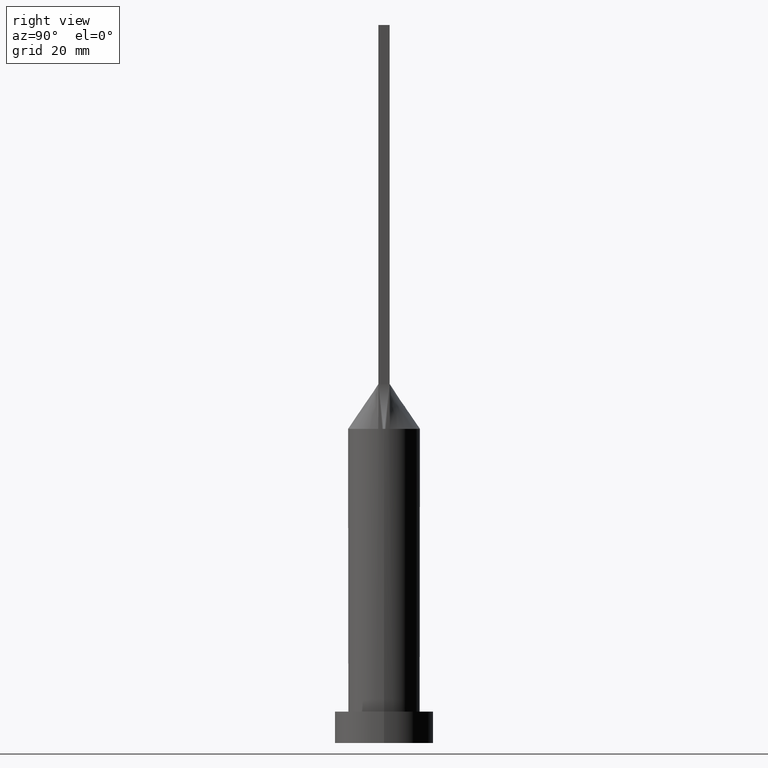
[diagram: clean part render]
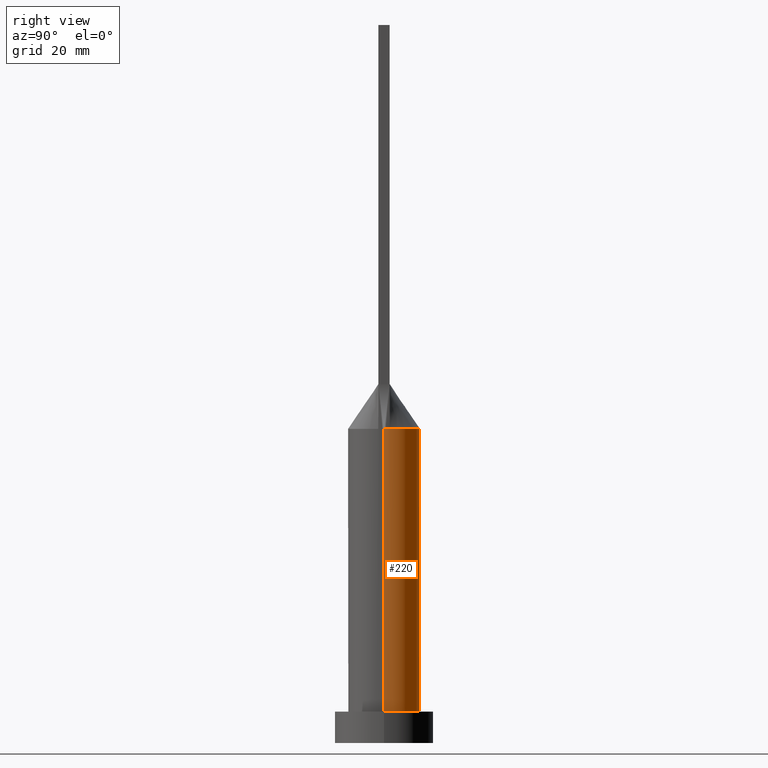
[diagram: same view with one face highlighted and labeled with its STEP entity id]
A machine part, right view. The second image highlights one B-rep face of the part: STEP entity #220.
In plain terms, the highlighted cylindrical surface (edge-blend (fillet) strip) has radius 8 mm, axis along (-0, -0, -1).
Its self-contained STEP definition (entity closure, byte-faithful):
#3 = VERTEX_POINT ( 'NONE', #634 ) ;
#4 = CARTESIAN_POINT ( 'NONE',  ( 0.5677556330368851434, 7.999999999999998224, 70.00000000000000000 ) ) ;
#10 = CARTESIAN_POINT ( 'NONE',  ( -8.000000000000000000, 0.000000000000000000, 70.00000000000000000 ) ) ;
#12 = CARTESIAN_POINT ( 'NONE',  ( -1.135368687448994329, 7.938897956688654389, 70.00000000000002842 ) ) ;
#17 = CARTESIAN_POINT ( 'NONE',  ( -6.100409024666552327, 5.197691498289451317, 70.00000000000000000 ) ) ;
#19 = CARTESIAN_POINT ( 'NONE',  ( 6.883287261198673512, 4.100742229440780484, 70.00000000000000000 ) ) ;
#37 = EDGE_LOOP ( 'NONE', ( #391, #460, #543, #574, #294, #537 ) ) ;
#57 = B_SPLINE_CURVE_WITH_KNOTS ( 'NONE', 3,
 ( #477, #154, #247, #304, #19, #214, #126, #529, #592, #152, #318, #457, #272, #364, #4, #377, #12, #564, #103, #313, #317, #517, #208, #17, #411, #511, #374, #602, #607, #367 ),
 .UNSPECIFIED., .F., .F.,
 ( 4, 2, 2, 2, 2, 2, 2, 2, 2, 2, 2, 2, 2, 2, 4 ),
 ( 0.000000000000000000, 0.1250000000000000000, 0.1875000000000000000, 0.2500000000000000000, 0.3125000000000000000, 0.3750000000000000000, 0.4375000000000000000, 0.5000000000000000000, 0.5625000000000000000, 0.6250000000000000000, 0.6875000000000000000, 0.7500000000000000000, 0.8125000000000000000, 0.8750000000000000000, 1.000000000000000000 ),
 .UNSPECIFIED. ) ;
#74 = CARTESIAN_POINT ( 'NONE',  ( 0.000000000000000000, 0.000000000000000000, 7.000000000000000000 ) ) ;
#77 = AXIS2_PLACEMENT_3D ( 'NONE', #74, #628, #319 ) ;
#86 = CARTESIAN_POINT ( 'NONE',  ( 7.897939137640443974, 1.273861156091724789, 70.00000000000000000 ) ) ;
#92 = CARTESIAN_POINT ( 'NONE',  ( 7.999674421998661522, 1.953788361903730848E-15, 70.00000000000000000 ) ) ;
#103 = CARTESIAN_POINT ( 'NONE',  ( -2.762781956618985291, 7.527418670504290255, 70.00000000000001421 ) ) ;
#106 = VERTEX_POINT ( 'NONE', #122 ) ;
#117 = CARTESIAN_POINT ( 'NONE',  ( -7.999674421998661522, -1.996358676257538358E-15, 70.00000000000000000 ) ) ;
#122 = CARTESIAN_POINT ( 'NONE',  ( -8.000000000000000000, 0.000000000000000000, 7.000000000000000000 ) ) ;
#126 = CARTESIAN_POINT ( 'NONE',  ( 6.100409024666552327, 5.197691498289451317, 70.00000000000000000 ) ) ;
#151 = VECTOR ( 'NONE', #268, 1000.000000000000000 ) ;
#152 = CARTESIAN_POINT ( 'NONE',  ( 4.217034177653714799, 6.817775467282659818, 70.00000000000001421 ) ) ;
#154 = CARTESIAN_POINT ( 'NONE',  ( 7.793128424795161990, 1.923622864214272088, 70.00000000000000000 ) ) ;
#161 = EDGE_CURVE ( 'NONE', #305, #263, #479, .T. ) ;
#184 = VECTOR ( 'NONE', #453, 1000.000000000000000 ) ;
#190 = DIRECTION ( 'NONE',  ( 1.000000000000000000, 0.000000000000000000, 0.000000000000000000 ) ) ;
#208 = CARTESIAN_POINT ( 'NONE',  ( -5.434261125067506804, 5.890653037160105576, 70.00000000000001421 ) ) ;
#214 = CARTESIAN_POINT ( 'NONE',  ( 6.389139692789920666, 4.834731051311459638, 70.00000000000001421 ) ) ;
#220 = ADVANCED_FACE ( 'NONE', ( #365 ), #503, .T. ) ;
#228 = EDGE_CURVE ( 'NONE', #305, #3, #636, .T. ) ;
#240 = CARTESIAN_POINT ( 'NONE',  ( 0.000000000000000000, 0.000000000000000000, 70.00000000000000000 ) ) ;
#241 = CARTESIAN_POINT ( 'NONE',  ( 8.000000000000000000, 9.797174393178825657E-16, 70.00000000000000000 ) ) ;
#247 = CARTESIAN_POINT ( 'NONE',  ( 7.597511974649646227, 2.632154125590748350, 69.99999999999998579 ) ) ;
#253 = CIRCLE ( 'NONE', #594, 8.000000000000000000 ) ;
#263 = VERTEX_POINT ( 'NONE', #86 ) ;
#268 = DIRECTION ( 'NONE',  ( -0.000000000000000000, -0.000000000000000000, -1.000000000000000000 ) ) ;
#272 = CARTESIAN_POINT ( 'NONE',  ( 2.232993174580878204, 7.702525839322459156, 70.00000000000002842 ) ) ;
#273 = EDGE_CURVE ( 'NONE', #3, #106, #378, .T. ) ;
#294 = ORIENTED_EDGE ( 'NONE', *, *, #617, .F. ) ;
#304 = CARTESIAN_POINT ( 'NONE',  ( 7.088837466865212988, 3.729743859143727303, 70.00000000000002842 ) ) ;
#305 = VERTEX_POINT ( 'NONE', #92 ) ;
#313 = CARTESIAN_POINT ( 'NONE',  ( -3.754841939107308235, 7.084924699190308317, 70.00000000000000000 ) ) ;
#317 = CARTESIAN_POINT ( 'NONE',  ( -4.217034177653714799, 6.817775467282660706, 70.00000000000001421 ) ) ;
#318 = CARTESIAN_POINT ( 'NONE',  ( 3.754841939107309567, 7.084924699190306541, 70.00000000000001421 ) ) ;
#319 = DIRECTION ( 'NONE',  ( 1.000000000000000000, 0.000000000000000000, 0.000000000000000000 ) ) ;
#321 = EDGE_CURVE ( 'NONE', #541, #106, #455, .T. ) ;
#333 = AXIS2_PLACEMENT_3D ( 'NONE', #444, #450, #480 ) ;
#357 = DIRECTION ( 'NONE',  ( -1.000000000000000000, 0.000000000000000000, 0.000000000000000000 ) ) ;
#364 = CARTESIAN_POINT ( 'NONE',  ( 1.135368687448996328, 7.938897956688654389, 70.00000000000001421 ) ) ;
#365 = FACE_OUTER_BOUND ( 'NONE', #37, .T. ) ;
#367 = CARTESIAN_POINT ( 'NONE',  ( -7.897950825069725234, 1.273863048877633020, 70.00000000000000000 ) ) ;
#374 = CARTESIAN_POINT ( 'NONE',  ( -7.088837466865208548, 3.729743859143727747, 70.00000000000001421 ) ) ;
#377 = CARTESIAN_POINT ( 'NONE',  ( -0.5677556330368852544, 7.999999999999998224, 69.99999999999998579 ) ) ;
#378 = CIRCLE ( 'NONE', #77, 8.000000000000000000 ) ;
#383 = DIRECTION ( 'NONE',  ( 0.000000000000000000, 0.000000000000000000, 1.000000000000000000 ) ) ;
#391 = ORIENTED_EDGE ( 'NONE', *, *, #161, .F. ) ;
#411 = CARTESIAN_POINT ( 'NONE',  ( -6.389139692789916225, 4.834731051311460526, 70.00000000000001421 ) ) ;
#435 = AXIS2_PLACEMENT_3D ( 'NONE', #240, #538, #357 ) ;
#436 = EDGE_CURVE ( 'NONE', #263, #562, #57, .T. ) ;
#444 = CARTESIAN_POINT ( 'NONE',  ( 0.000000000000000000, 0.000000000000000000, 70.00000000000000000 ) ) ;
#450 = DIRECTION ( 'NONE',  ( 0.000000000000000000, 0.000000000000000000, 1.000000000000000000 ) ) ;
#453 = DIRECTION ( 'NONE',  ( -0.000000000000000000, -0.000000000000000000, -1.000000000000000000 ) ) ;
#455 = LINE ( 'NONE', #10, #151 ) ;
#457 = CARTESIAN_POINT ( 'NONE',  ( 2.762781956618984847, 7.527418670504289366, 70.00000000000000000 ) ) ;
#458 = CARTESIAN_POINT ( 'NONE',  ( -7.897950825069725234, 1.273863048877633020, 70.00000000000000000 ) ) ;
#460 = ORIENTED_EDGE ( 'NONE', *, *, #228, .T. ) ;
#477 = CARTESIAN_POINT ( 'NONE',  ( 7.897939137640443974, 1.273861156091724789, 70.00000000000000000 ) ) ;
#479 = CIRCLE ( 'NONE', #333, 8.000000000000000000 ) ;
#480 = DIRECTION ( 'NONE',  ( 1.000000000000000000, 0.000000000000000000, 0.000000000000000000 ) ) ;
#481 = CARTESIAN_POINT ( 'NONE',  ( 0.000000000000000000, 0.000000000000000000, 70.00000000000000000 ) ) ;
#503 = CYLINDRICAL_SURFACE ( 'NONE', #435, 8.000000000000000000 ) ;
#511 = CARTESIAN_POINT ( 'NONE',  ( -6.883287261198669960, 4.100742229440782260, 69.99999999999998579 ) ) ;
#517 = CARTESIAN_POINT ( 'NONE',  ( -5.056714967162549534, 6.220536417275851271, 70.00000000000000000 ) ) ;
#529 = CARTESIAN_POINT ( 'NONE',  ( 5.434261125067508580, 5.890653037160103800, 70.00000000000001421 ) ) ;
#537 = ORIENTED_EDGE ( 'NONE', *, *, #436, .F. ) ;
#538 = DIRECTION ( 'NONE',  ( -0.000000000000000000, -0.000000000000000000, -1.000000000000000000 ) ) ;
#541 = VERTEX_POINT ( 'NONE', #117 ) ;
#543 = ORIENTED_EDGE ( 'NONE', *, *, #273, .T. ) ;
#562 = VERTEX_POINT ( 'NONE', #458 ) ;
#564 = CARTESIAN_POINT ( 'NONE',  ( -2.232993174580875539, 7.702525839322460044, 70.00000000000001421 ) ) ;
#574 = ORIENTED_EDGE ( 'NONE', *, *, #321, .F. ) ;
#592 = CARTESIAN_POINT ( 'NONE',  ( 5.056714967162550423, 6.220536417275850383, 70.00000000000001421 ) ) ;
#594 = AXIS2_PLACEMENT_3D ( 'NONE', #481, #383, #190 ) ;
#602 = CARTESIAN_POINT ( 'NONE',  ( -7.597511974649647115, 2.632154125590751903, 70.00000000000001421 ) ) ;
#607 = CARTESIAN_POINT ( 'NONE',  ( -7.793128424795161102, 1.923622864214273198, 70.00000000000000000 ) ) ;
#617 = EDGE_CURVE ( 'NONE', #562, #541, #253, .T. ) ;
#628 = DIRECTION ( 'NONE',  ( 0.000000000000000000, 0.000000000000000000, 1.000000000000000000 ) ) ;
#634 = CARTESIAN_POINT ( 'NONE',  ( 8.000000000000000000, 9.797174393178825657E-16, 7.000000000000000000 ) ) ;
#636 = LINE ( 'NONE', #241, #184 ) ;